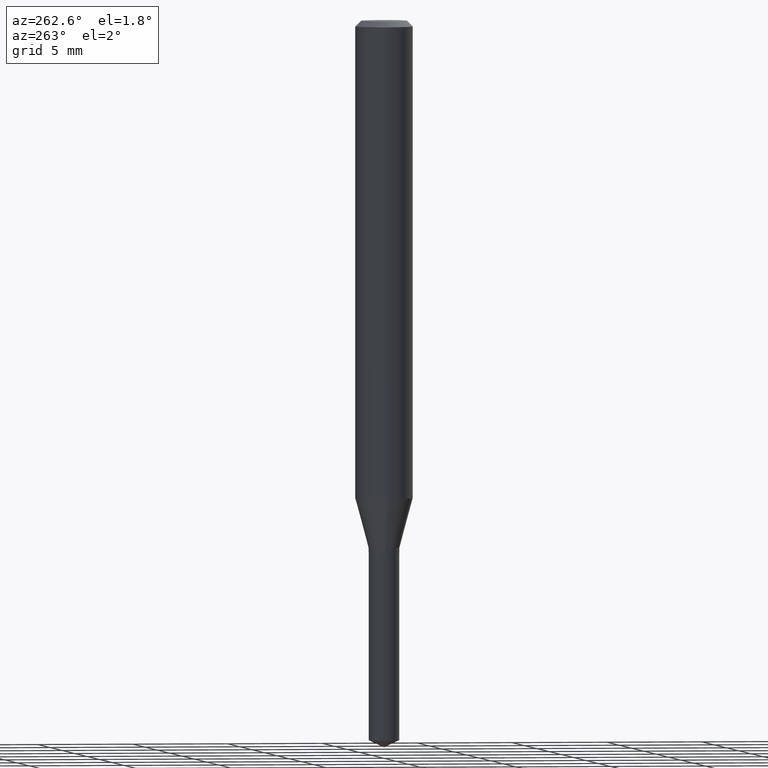
[diagram: clean part render]
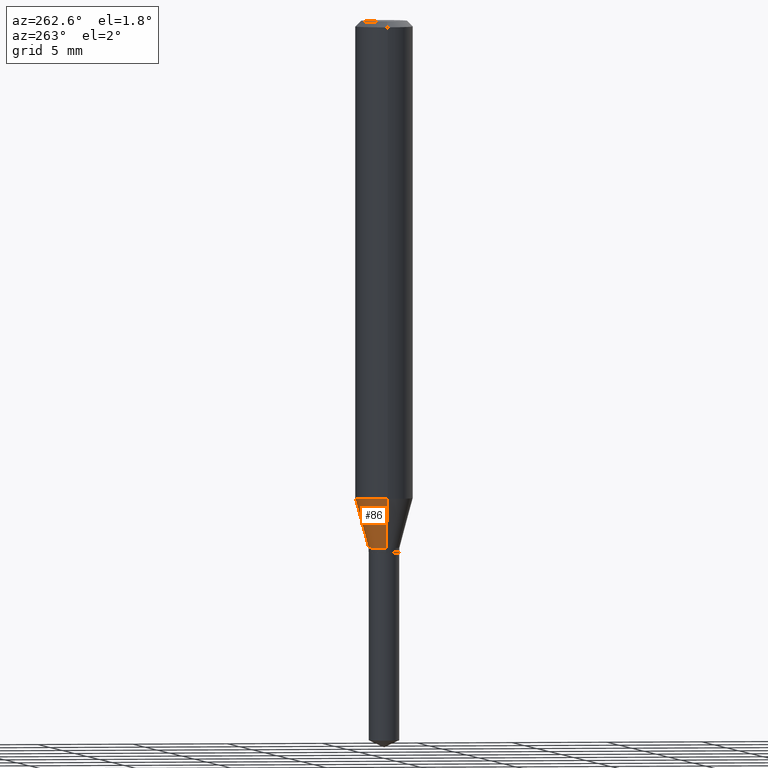
[diagram: same view with one face highlighted and labeled with its STEP entity id]
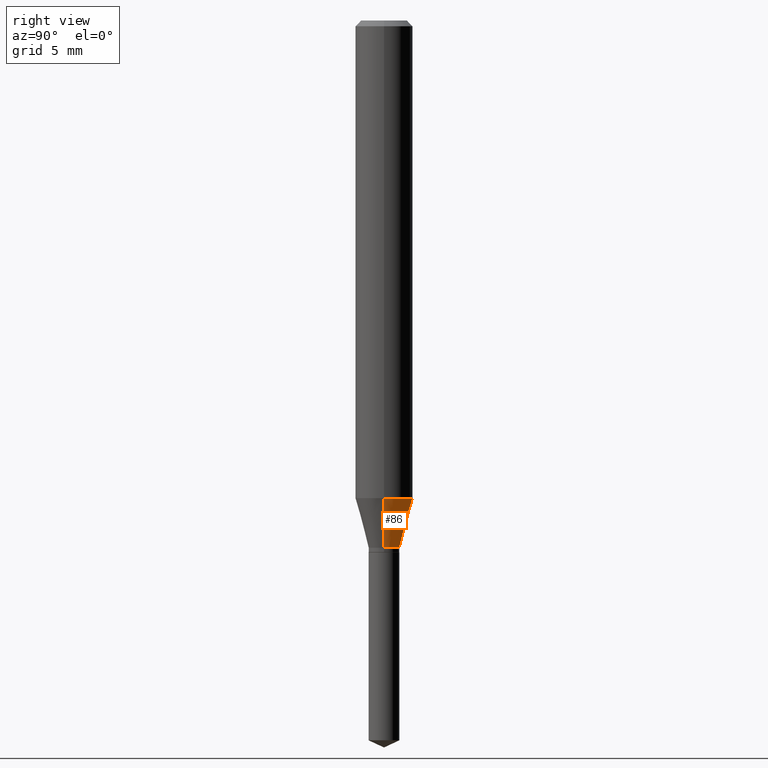
[diagram: same view with one face highlighted and labeled with its STEP entity id]
A machine part, auxiliary view. The second image highlights one B-rep face of the part: STEP entity #86.
A second angle (right view) of the same face is appended — the face is thin or edge-on in the first view.
In plain terms, the highlighted conical surface has half-angle 15 deg.
Its self-contained STEP definition (entity closure, byte-faithful):
#14 = FACE_OUTER_BOUND ( 'NONE', #111, .T. ) ;
#28 = DIRECTION ( 'NONE',  ( -2.445468806185136597E-29, 3.491481338843145583E-15, 1.000000000000000000 ) ) ;
#47 = LINE ( 'NONE', #117, #302 ) ;
#74 = DIRECTION ( 'NONE',  ( -2.445468806185136597E-29, 3.491481338843145583E-15, 1.000000000000000000 ) ) ;
#83 = EDGE_CURVE ( 'NONE', #359, #179, #440, .T. ) ;
#86 = ADVANCED_FACE ( 'NONE', ( #14 ), #471, .T. ) ;
#95 = ORIENTED_EDGE ( 'NONE', *, *, #232, .T. ) ;
#107 = DIRECTION ( 'NONE',  ( 0.2588190451025211836, 1.565188264969622559E-15, 0.9659258262890679791 ) ) ;
#111 = EDGE_LOOP ( 'NONE', ( #397, #95, #168, #262 ) ) ;
#113 = CARTESIAN_POINT ( 'NONE',  ( -0.03169999999999998513, -3.578726871433655542E-15, -1.084999999999999964 ) ) ;
#117 = CARTESIAN_POINT ( 'NONE',  ( -0.03169999999999998513, -3.563015205408861221E-15, -1.084999999999999964 ) ) ;
#123 = DIRECTION ( 'NONE',  ( -0.2588190451025211836, 5.211531920934547886E-15, 0.9659258262890679791 ) ) ;
#127 = AXIS2_PLACEMENT_3D ( 'NONE', #469, #28, #328 ) ;
#155 = DIRECTION ( 'NONE',  ( -2.445468806185136597E-29, 3.491481338843145583E-15, 1.000000000000000000 ) ) ;
#157 = DIRECTION ( 'NONE',  ( 1.000000000000000000, -6.982962677686272233E-15, 0.000000000000000000 ) ) ;
#164 = CIRCLE ( 'NONE', #127, 0.05905000000000011628 ) ;
#168 = ORIENTED_EDGE ( 'NONE', *, *, #393, .F. ) ;
#179 = VERTEX_POINT ( 'NONE', #113 ) ;
#186 = CARTESIAN_POINT ( 'NONE',  ( 2.653333654710873051E-29, -3.788257252644812628E-15, -1.084999999999999964 ) ) ;
#197 = AXIS2_PLACEMENT_3D ( 'NONE', #413, #74, #218 ) ;
#218 = DIRECTION ( 'NONE',  ( 1.000000000000000000, -6.982962677686272233E-15, 0.000000000000000000 ) ) ;
#232 = EDGE_CURVE ( 'NONE', #179, #312, #47, .T. ) ;
#262 = ORIENTED_EDGE ( 'NONE', *, *, #483, .F. ) ;
#271 = VECTOR ( 'NONE', #107, 39.37007874015748854 ) ;
#302 = VECTOR ( 'NONE', #123, 39.37007874015748854 ) ;
#312 = VERTEX_POINT ( 'NONE', #313 ) ;
#313 = CARTESIAN_POINT ( 'NONE',  ( -0.05905000000000011628, -3.012300716909374642E-15, -0.9829284104129908384 ) ) ;
#316 = VERTEX_POINT ( 'NONE', #434 ) ;
#328 = DIRECTION ( 'NONE',  ( 1.000000000000000000, -6.982962677686266711E-15, 0.000000000000000000 ) ) ;
#359 = VERTEX_POINT ( 'NONE', #367 ) ;
#367 = CARTESIAN_POINT ( 'NONE',  ( 0.03169999999999998513, -4.009617169527467169E-15, -1.084999999999999964 ) ) ;
#374 = LINE ( 'NONE', #403, #271 ) ;
#393 = EDGE_CURVE ( 'NONE', #316, #312, #164, .T. ) ;
#397 = ORIENTED_EDGE ( 'NONE', *, *, #83, .T. ) ;
#403 = CARTESIAN_POINT ( 'NONE',  ( 0.03169999999999998513, -4.009617169527467169E-15, -1.084999999999999964 ) ) ;
#413 = CARTESIAN_POINT ( 'NONE',  ( 2.653333654710873051E-29, -3.788257252644812628E-15, -1.084999999999999964 ) ) ;
#434 = CARTESIAN_POINT ( 'NONE',  ( 0.05905000000000011628, -3.844220148493089449E-15, -0.9829284104129908384 ) ) ;
#440 = CIRCLE ( 'NONE', #197, 0.03169999999999998513 ) ;
#449 = AXIS2_PLACEMENT_3D ( 'NONE', #186, #155, #157 ) ;
#469 = CARTESIAN_POINT ( 'NONE',  ( 2.403720766378110614E-29, -3.431876202375714135E-15, -0.9829284104129908384 ) ) ;
#471 = CONICAL_SURFACE ( 'NONE', #449, 0.03169999999999998513, 0.2617993877991499074 ) ;
#483 = EDGE_CURVE ( 'NONE', #359, #316, #374, .T. ) ;